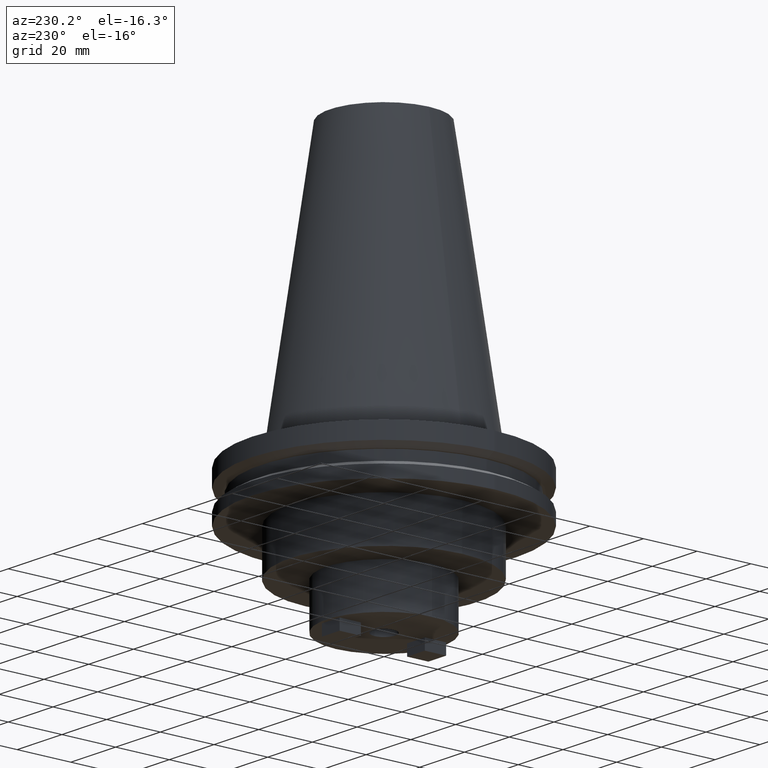
[diagram: clean part render]
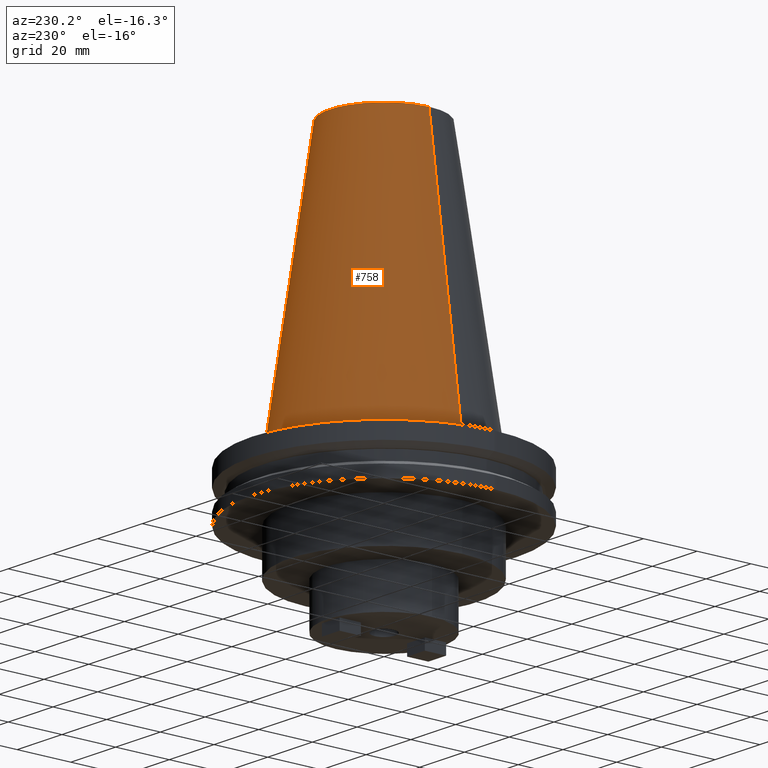
[diagram: same view with one face highlighted and labeled with its STEP entity id]
A machine part, auxiliary view. The second image highlights one B-rep face of the part: STEP entity #758.
In plain terms, the highlighted conical surface has half-angle 8.297 deg.
Its self-contained STEP definition (entity closure, byte-faithful):
#17 = VERTEX_POINT ( 'NONE', #814 ) ;
#41 = CIRCLE ( 'NONE', #100, 20.10819343178871321 ) ;
#99 = EDGE_LOOP ( 'NONE', ( #351, #707, #511, #674 ) ) ;
#100 = AXIS2_PLACEMENT_3D ( 'NONE', #887, #437, #710 ) ;
#135 = CARTESIAN_POINT ( 'NONE',  ( -34.92499999999999005, 0.000000000000000000, 0.000000000000000000 ) ) ;
#181 = DIRECTION ( 'NONE',  ( 0.1443082272672999988, 1.767266086135277066E-17, -0.9895327864921755756 ) ) ;
#187 = CARTESIAN_POINT ( 'NONE',  ( 20.10819343178871321, 3.369811209154858606E-15, 101.5999999999999801 ) ) ;
#257 = CONICAL_SURFACE ( 'NONE', #647, 34.92499999999999005, 0.1448138465474119452 ) ;
#264 = VERTEX_POINT ( 'NONE', #187 ) ;
#292 = FACE_OUTER_BOUND ( 'NONE', #99, .T. ) ;
#347 = CIRCLE ( 'NONE', #596, 34.92499999999999005 ) ;
#351 = ORIENTED_EDGE ( 'NONE', *, *, #372, .F. ) ;
#372 = EDGE_CURVE ( 'NONE', #264, #17, #41, .T. ) ;
#437 = DIRECTION ( 'NONE',  ( -0.000000000000000000, -0.000000000000000000, 1.000000000000000000 ) ) ;
#442 = VECTOR ( 'NONE', #181, 999.9999999999998863 ) ;
#466 = EDGE_CURVE ( 'NONE', #17, #499, #897, .T. ) ;
#499 = VERTEX_POINT ( 'NONE', #135 ) ;
#511 = ORIENTED_EDGE ( 'NONE', *, *, #918, .T. ) ;
#596 = AXIS2_PLACEMENT_3D ( 'NONE', #974, #722, #1070 ) ;
#647 = AXIS2_PLACEMENT_3D ( 'NONE', #964, #882, #957 ) ;
#674 = ORIENTED_EDGE ( 'NONE', *, *, #466, .F. ) ;
#707 = ORIENTED_EDGE ( 'NONE', *, *, #1055, .T. ) ;
#710 = DIRECTION ( 'NONE',  ( 1.000000000000000000, 0.000000000000000000, 0.000000000000000000 ) ) ;
#722 = DIRECTION ( 'NONE',  ( -0.000000000000000000, -0.000000000000000000, 1.000000000000000000 ) ) ;
#744 = CARTESIAN_POINT ( 'NONE',  ( -34.92499999999999005, 0.000000000000000000, 0.000000000000000000 ) ) ;
#758 = ADVANCED_FACE ( 'NONE', ( #292 ), #257, .T. ) ;
#775 = LINE ( 'NONE', #921, #442 ) ;
#814 = CARTESIAN_POINT ( 'NONE',  ( -20.10819343178871321, 0.000000000000000000, 101.5999999999999801 ) ) ;
#862 = CARTESIAN_POINT ( 'NONE',  ( 34.92499999999999005, 4.277078946022130098E-15, 0.000000000000000000 ) ) ;
#882 = DIRECTION ( 'NONE',  ( 0.000000000000000000, 0.000000000000000000, -1.000000000000000000 ) ) ;
#887 = CARTESIAN_POINT ( 'NONE',  ( 0.000000000000000000, 0.000000000000000000, 101.5999999999999801 ) ) ;
#897 = LINE ( 'NONE', #744, #1031 ) ;
#918 = EDGE_CURVE ( 'NONE', #1037, #499, #347, .T. ) ;
#921 = CARTESIAN_POINT ( 'NONE',  ( 34.92499999999999005, 4.277078946022130098E-15, 0.000000000000000000 ) ) ;
#957 = DIRECTION ( 'NONE',  ( -1.000000000000000000, 0.000000000000000000, 0.000000000000000000 ) ) ;
#964 = CARTESIAN_POINT ( 'NONE',  ( 0.000000000000000000, 0.000000000000000000, 0.000000000000000000 ) ) ;
#974 = CARTESIAN_POINT ( 'NONE',  ( 0.000000000000000000, 0.000000000000000000, 0.000000000000000000 ) ) ;
#1031 = VECTOR ( 'NONE', #1076, 999.9999999999998863 ) ;
#1037 = VERTEX_POINT ( 'NONE', #862 ) ;
#1055 = EDGE_CURVE ( 'NONE', #264, #1037, #775, .T. ) ;
#1070 = DIRECTION ( 'NONE',  ( 1.000000000000000000, 0.000000000000000000, 0.000000000000000000 ) ) ;
#1076 = DIRECTION ( 'NONE',  ( -0.1443082272672999988, 0.000000000000000000, -0.9895327864921755756 ) ) ;